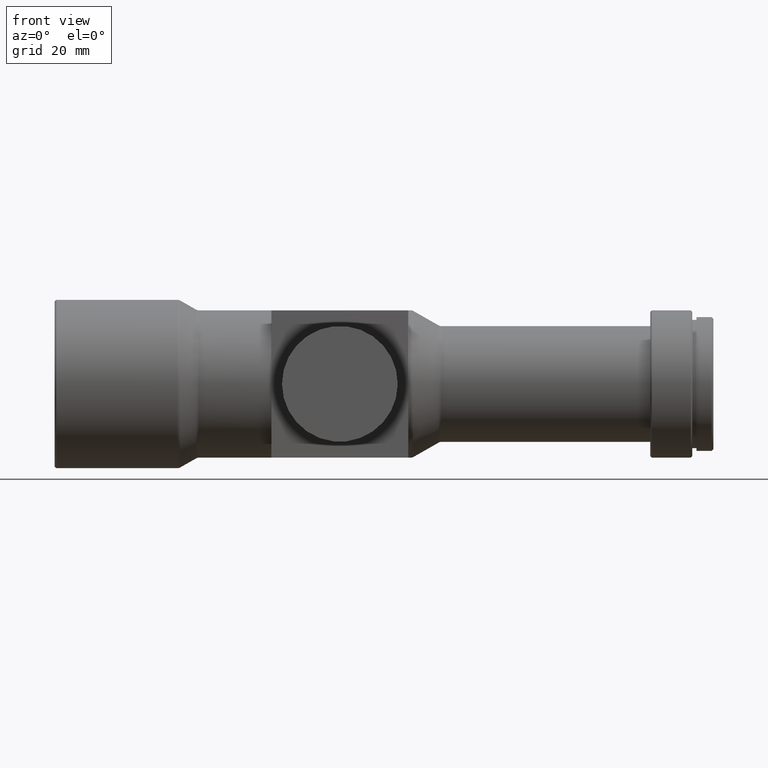
[diagram: clean part render]
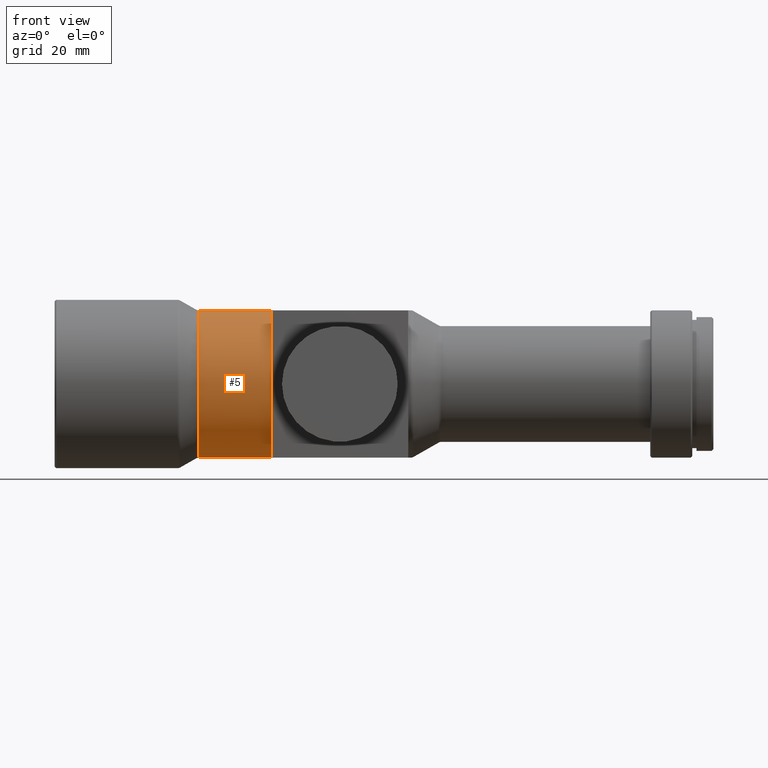
[diagram: same view with one face highlighted and labeled with its STEP entity id]
A machine part, front view. The second image highlights one B-rep face of the part: STEP entity #5.
In plain terms, the highlighted cylindrical surface (partial cylindrical patch) has radius 14 mm, axis along (-1, -0, -0).
Its self-contained STEP definition (entity closure, byte-faithful):
#5 = ADVANCED_FACE ( 'NONE', ( #41 ), #90, .T. ) ;
#34 = CARTESIAN_POINT ( 'NONE',  ( 41.20000000000001700, 0.0000000000000000000, -14.00000000000000000 ) ) ;
#41 = FACE_OUTER_BOUND ( 'NONE', #975, .T. ) ;
#70 = CARTESIAN_POINT ( 'NONE',  ( 41.20000000000001700, 0.0000000000000000000, 0.0000000000000000000 ) ) ;
#83 = DIRECTION ( 'NONE',  ( 0.0000000000000000000, 0.0000000000000000000, -1.000000000000000000 ) ) ;
#90 = CYLINDRICAL_SURFACE ( 'NONE', #424, 14.00000000000000000 ) ;
#113 = EDGE_CURVE ( 'NONE', #1079, #647, #1091, .T. ) ;
#156 = DIRECTION ( 'NONE',  ( -1.000000000000000000, -0.0000000000000000000, -0.0000000000000000000 ) ) ;
#162 = ORIENTED_EDGE ( 'NONE', *, *, #666, .F. ) ;
#169 = CIRCLE ( 'NONE', #749, 14.00000000000000000 ) ;
#188 = DIRECTION ( 'NONE',  ( -1.000000000000000000, -0.0000000000000000000, -0.0000000000000000000 ) ) ;
#203 = DIRECTION ( 'NONE',  ( 0.0000000000000000000, 0.0000000000000000000, -1.000000000000000000 ) ) ;
#217 = ORIENTED_EDGE ( 'NONE', *, *, #369, .F. ) ;
#220 = VERTEX_POINT ( 'NONE', #335 ) ;
#272 = AXIS2_PLACEMENT_3D ( 'NONE', #479, #488, #203 ) ;
#329 = CARTESIAN_POINT ( 'NONE',  ( 41.20000000000001700, 0.0000000000000000000, 14.00000000000000000 ) ) ;
#335 = CARTESIAN_POINT ( 'NONE',  ( 27.39999999999999900, 0.0000000000000000000, 14.00000000000000000 ) ) ;
#369 = EDGE_CURVE ( 'NONE', #1243, #1211, #430, .T. ) ;
#416 = CIRCLE ( 'NONE', #272, 14.00000000000000000 ) ;
#420 = CARTESIAN_POINT ( 'NONE',  ( 27.39999999999999900, 0.0000000000000000000, 0.0000000000000000000 ) ) ;
#424 = AXIS2_PLACEMENT_3D ( 'NONE', #775, #188, #1292 ) ;
#430 = LINE ( 'NONE', #923, #637 ) ;
#453 = ORIENTED_EDGE ( 'NONE', *, *, #1076, .F. ) ;
#479 = CARTESIAN_POINT ( 'NONE',  ( 41.20000000000001700, 0.0000000000000000000, 0.0000000000000000000 ) ) ;
#488 = DIRECTION ( 'NONE',  ( 1.000000000000000000, 0.0000000000000000000, 0.0000000000000000000 ) ) ;
#502 = ORIENTED_EDGE ( 'NONE', *, *, #1290, .T. ) ;
#534 = DIRECTION ( 'NONE',  ( -1.000000000000000000, -0.0000000000000000000, -0.0000000000000000000 ) ) ;
#540 = LINE ( 'NONE', #544, #1058 ) ;
#544 = CARTESIAN_POINT ( 'NONE',  ( 0.0000000000000000000, 0.0000000000000000000, 14.00000000000000000 ) ) ;
#595 = CARTESIAN_POINT ( 'NONE',  ( 41.20000000000001700, -14.00000000000000200, 0.0000000000000000000 ) ) ;
#605 = DIRECTION ( 'NONE',  ( 0.0000000000000000000, 0.0000000000000000000, 1.000000000000000000 ) ) ;
#637 = VECTOR ( 'NONE', #534, 1000.000000000000000 ) ;
#647 = VERTEX_POINT ( 'NONE', #595 ) ;
#666 = EDGE_CURVE ( 'NONE', #647, #1243, #416, .T. ) ;
#749 = AXIS2_PLACEMENT_3D ( 'NONE', #420, #1036, #605 ) ;
#775 = CARTESIAN_POINT ( 'NONE',  ( 0.0000000000000000000, 0.0000000000000000000, 0.0000000000000000000 ) ) ;
#791 = ORIENTED_EDGE ( 'NONE', *, *, #113, .F. ) ;
#875 = DIRECTION ( 'NONE',  ( 1.000000000000000000, 0.0000000000000000000, 0.0000000000000000000 ) ) ;
#923 = CARTESIAN_POINT ( 'NONE',  ( 0.0000000000000000000, 1.714505518806294600E-015, -14.00000000000000000 ) ) ;
#975 = EDGE_LOOP ( 'NONE', ( #217, #162, #791, #502, #453 ) ) ;
#1036 = DIRECTION ( 'NONE',  ( -1.000000000000000000, -0.0000000000000000000, -0.0000000000000000000 ) ) ;
#1058 = VECTOR ( 'NONE', #156, 1000.000000000000000 ) ;
#1076 = EDGE_CURVE ( 'NONE', #1211, #220, #169, .T. ) ;
#1079 = VERTEX_POINT ( 'NONE', #329 ) ;
#1086 = AXIS2_PLACEMENT_3D ( 'NONE', #70, #875, #83 ) ;
#1091 = CIRCLE ( 'NONE', #1086, 14.00000000000000000 ) ;
#1211 = VERTEX_POINT ( 'NONE', #1235 ) ;
#1235 = CARTESIAN_POINT ( 'NONE',  ( 27.39999999999999900, 1.714505518806294600E-015, -14.00000000000000000 ) ) ;
#1243 = VERTEX_POINT ( 'NONE', #34 ) ;
#1290 = EDGE_CURVE ( 'NONE', #1079, #220, #540, .T. ) ;
#1292 = DIRECTION ( 'NONE',  ( 0.0000000000000000000, 0.0000000000000000000, 1.000000000000000000 ) ) ;